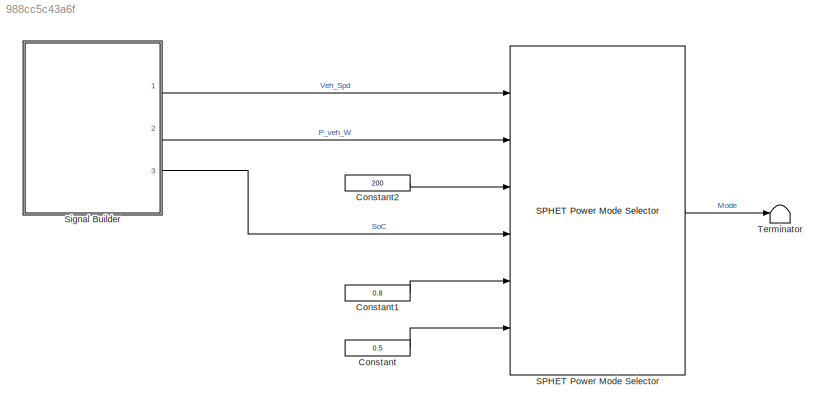
MODEL slx_988cc5c43a6f
KIND model
CONFIG AbsTol = auto
CONFIG EnableMultiTasking = off
CONFIG FixedStep = 0.1
CONFIG MaxStep = auto
CONFIG MinStep = auto
CONFIG RelTol = 1e-3
CONFIG SampleTimeConstraint = Unconstrained
CONFIG Solver = ode1
CONFIG SolverName = ode1
CONFIG StartTime = 0.0
CONFIG StopTime = 10.0
BLOCK [Constant] Constant
  Value = 0.5
BLOCK [Constant] Constant1
  Value = 0.8
BLOCK [Constant] Constant2
  Value = 200
BLOCK [Reference] SPHET Power Mode Selector  REF=platooning_custom_blocks/SPHET Power Mode Selector  (lib defined in slx_64fc7da9e19a)
  Ports = [6, 1]
  SourceBlock = platooning_custom_blocks/SPHET Power Mode Selector
  SourceType = SubSystem
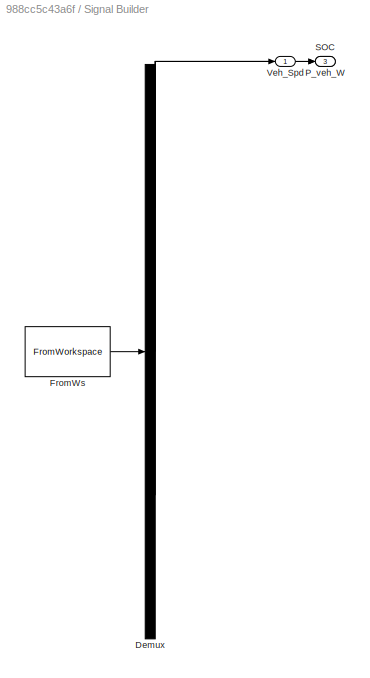
BLOCK [SubSystem] Signal Builder
  ClipboardFcn = sigbuilder_block('clipboard');
  CloseFcn = sigbuilder_block('close');
  ContinueFcn = sigbuilder_block('continue');
  CopyFcn = sigbuilder_block('copy');
  DeleteFcn = sigbuilder_block('delete');
  LoadFcn = sigbuilder_block('load');
  MaskHideContents = on
  ModelCloseFcn = sigbuilder_block('modelClose');
  NameChangeFcn = sigbuilder_block('namechange');
  OpenFcn = sigbuilder_block('open',[712.5 234.75 550.5 399.75 ]);
  PauseFcn = sigbuilder_block('pause');
  Ports = [0, 3]
  PreSaveFcn = sigbuilder_block('preSave');
  RequestExecContextInheritance = off
  StartFcn = sigbuilder_block('start');
  StopFcn = sigbuilder_block('stop');
  Tag = STV Subsys
BLOCK [Demux] Signal Builder/Demux
  Outputs = 3
  Ports = [1, 3]
  Tag = STV Demux
BLOCK [FromWorkspace] Signal Builder/FromWs
  SampleTime = 0
  Tag = STV FromWs
  VariableName = tuvar
  ZeroCross = on
BLOCK [Outport] Signal Builder/P_veh_W
  IconDisplay = Port number
  Port = 2
  Tag = STV Outport
BLOCK [Outport] Signal Builder/SOC
  IconDisplay = Port number
  Port = 3
  Tag = STV Outport
BLOCK [Outport] Signal Builder/Veh_Spd
  IconDisplay = Port number
  Tag = STV Outport
BLOCK [Terminator] Terminator
LINE Constant1:1 -> SPHET Power Mode Selector:5
LINE Constant2:1 -> SPHET Power Mode Selector:3
LINE Constant:1 -> SPHET Power Mode Selector:6
LINE SPHET Power Mode Selector:1 -> Terminator:1
LINE Signal Builder:1 -> SPHET Power Mode Selector:1
LINE Signal Builder:2 -> SPHET Power Mode Selector:2
LINE Signal Builder:3 -> SPHET Power Mode Selector:4
